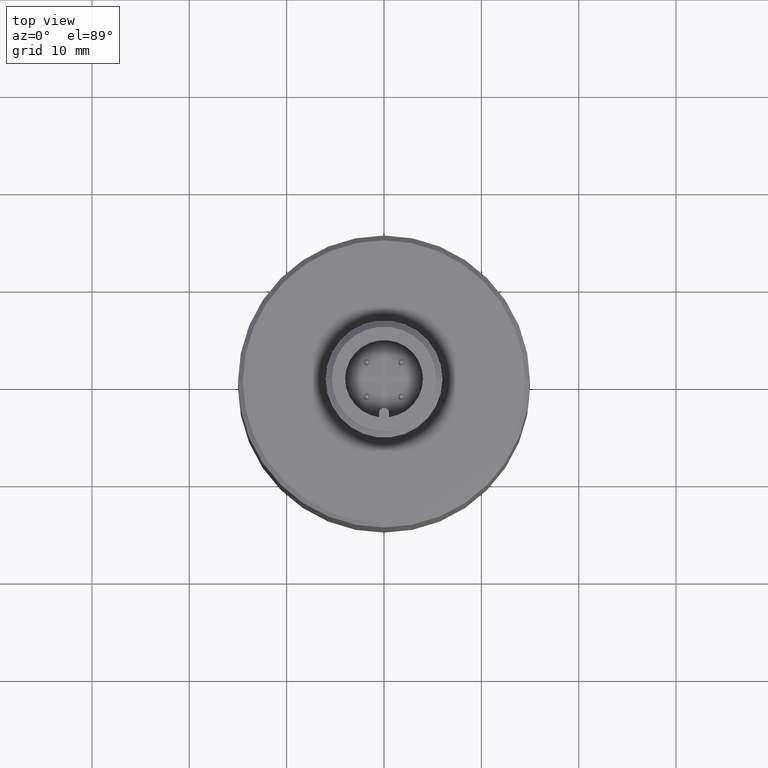
[diagram: clean part render]
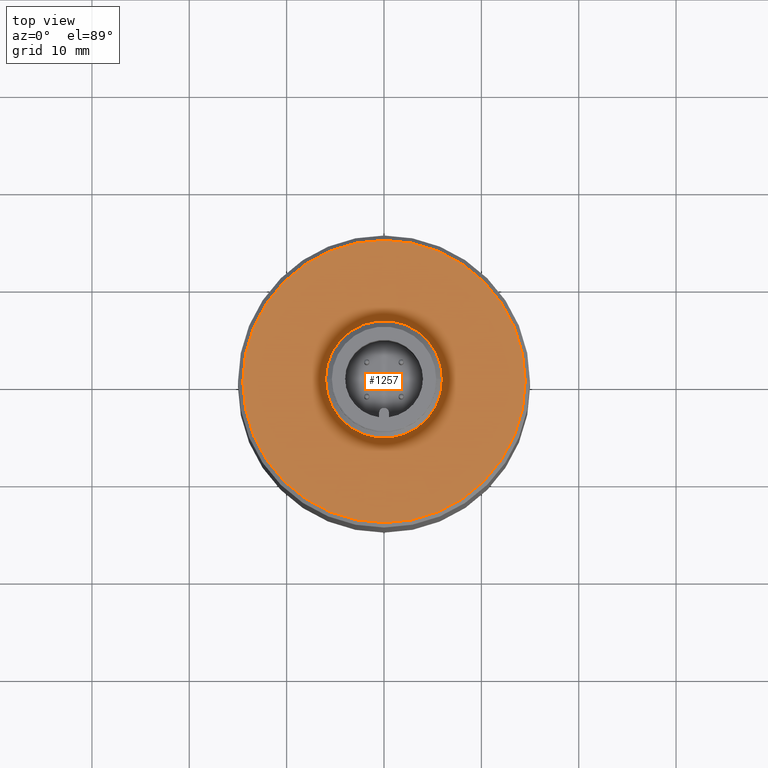
[diagram: same view with one face highlighted and labeled with its STEP entity id]
A machine part, top view. The second image highlights one B-rep face of the part: STEP entity #1257.
In plain terms, the highlighted planar face has unit normal (0, 0, 1).
Its self-contained STEP definition (entity closure, byte-faithful):
#1193=CARTESIAN_POINT('POINT658',(5.5585E+000,0.0E+000,4.6E+001));
#1194=VERTEX_POINT('VERTEX658',#1193);
#1201=CARTESIAN_POINT('POINT659',(-5.5585E+000,-6.80697441772168E-016,
   4.6E+001));
#1202=VERTEX_POINT('VERTEX659',#1201);
#1203=CARTESIAN_POINT('POS1025',(0.0E+000,0.0E+000,4.6E+001));
#1204=DIRECTION('DIR1517',(0.0E+000,0.0E+000,-1.0E+000));
#1205=DIRECTION('DIR1518',(1.0E+000,0.0E+000,0.0E+000));
#1206=AXIS2_PLACEMENT_3D('AXIS493',#1203,#1204,#1205);
#1207=CIRCLE('ELLIPSE235',#1206,5.5585E+000);
#1208=EDGE_CURVE('EDGE1014',#1202,#1194,#1207,.T.);
#1228=EDGE_CURVE('EDGE1016',#1194,#1202,#1207,.T.);
#1233=ORIENTED_EDGE('COEDGE2031',*,*,#1228,.T.);
#1234=ORIENTED_EDGE('COEDGE2032',*,*,#1208,.T.);
#1235=EDGE_LOOP('NONE',(#1233,#1234));
#1236=FACE_BOUND('LOOP1',#1235,.T.);
#1237=CARTESIAN_POINT('POINT660',(1.45E+001,2.81659461379147E-015,
   4.6E+001));
#1238=VERTEX_POINT('VERTEX660',#1237);
#1239=CARTESIAN_POINT('POINT661',(-1.45E+001,-1.77567921304245E-015,
   4.6E+001));
#1240=VERTEX_POINT('VERTEX661',#1239);
#1241=CARTESIAN_POINT('POS1028',(0.0E+000,0.0E+000,4.6E+001));
#1242=DIRECTION('DIR1522',(0.0E+000,0.0E+000,-1.0E+000));
#1243=DIRECTION('DIR1523',(1.0E+000,0.0E+000,0.0E+000));
#1244=AXIS2_PLACEMENT_3D('AXIS495',#1241,#1242,#1243);
#1245=CIRCLE('ELLIPSE236',#1244,1.45E+001);
#1246=EDGE_CURVE('EDGE1017',#1238,#1240,#1245,.T.);
#1247=ORIENTED_EDGE('COEDGE2033',*,*,#1246,.F.);
#1248=EDGE_CURVE('EDGE1018',#1240,#1238,#1245,.T.);
#1249=ORIENTED_EDGE('COEDGE2034',*,*,#1248,.F.);
#1250=EDGE_LOOP('NONE',(#1247,#1249));
#1251=FACE_BOUND('LOOP1',#1250,.T.);
#1252=CARTESIAN_POINT('POS1029',(7.25E+000,2.81659461379147E-015,
   4.6E+001));
#1253=DIRECTION('DIR1524',(0.0E+000,0.0E+000,1.0E+000));
#1254=DIRECTION('DIR1525',(1.0E+000,0.0E+000,0.0E+000));
#1255=AXIS2_PLACEMENT_3D('AXIS496',#1252,#1253,#1254);
#1256=PLANE('PLANE156',#1255);
#1257=ADVANCED_FACE('FACE391',(#1236,#1251),#1256,.T.);